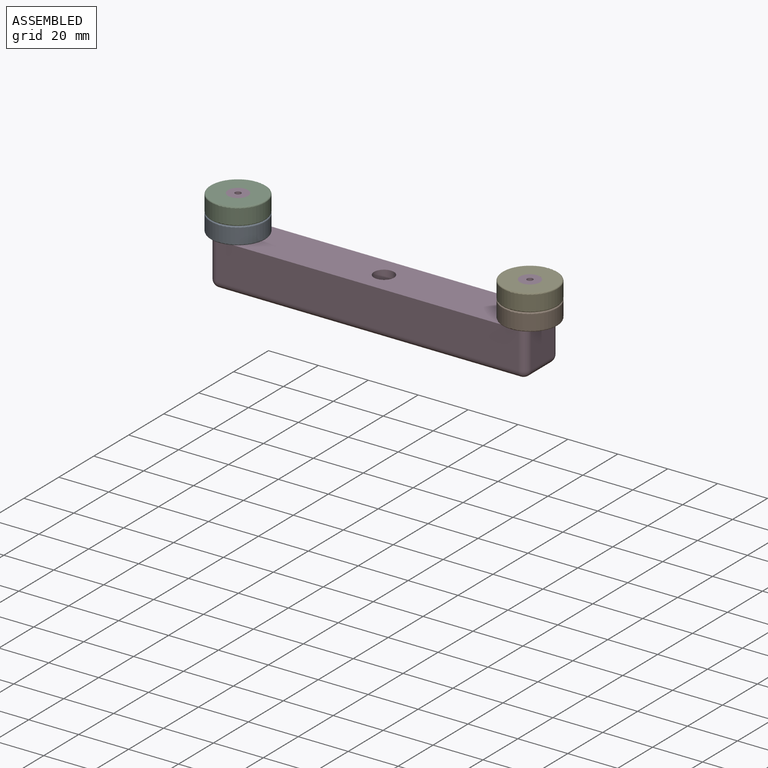
[diagram: assembled view]
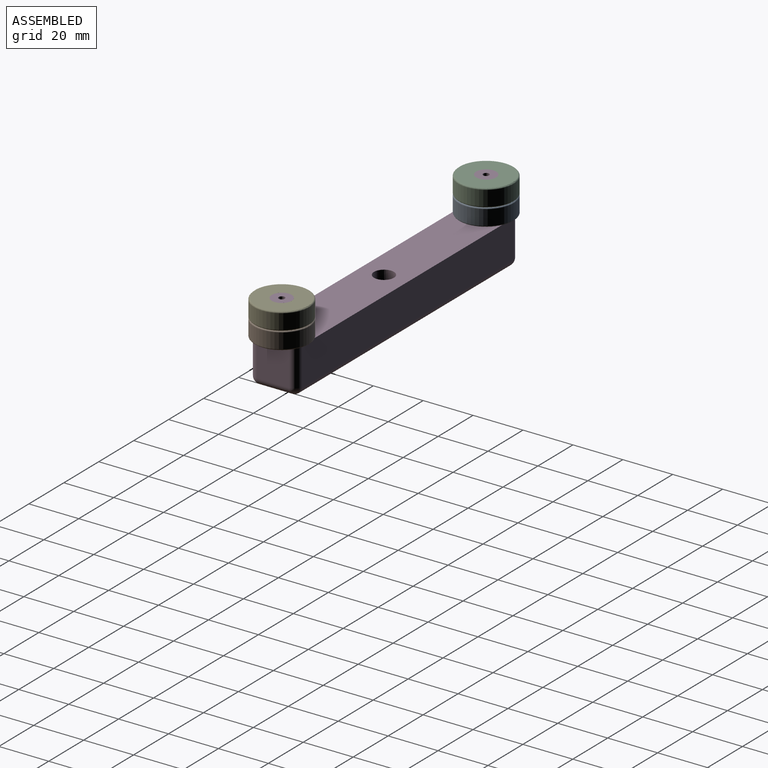
[diagram: assembled view, second angle]
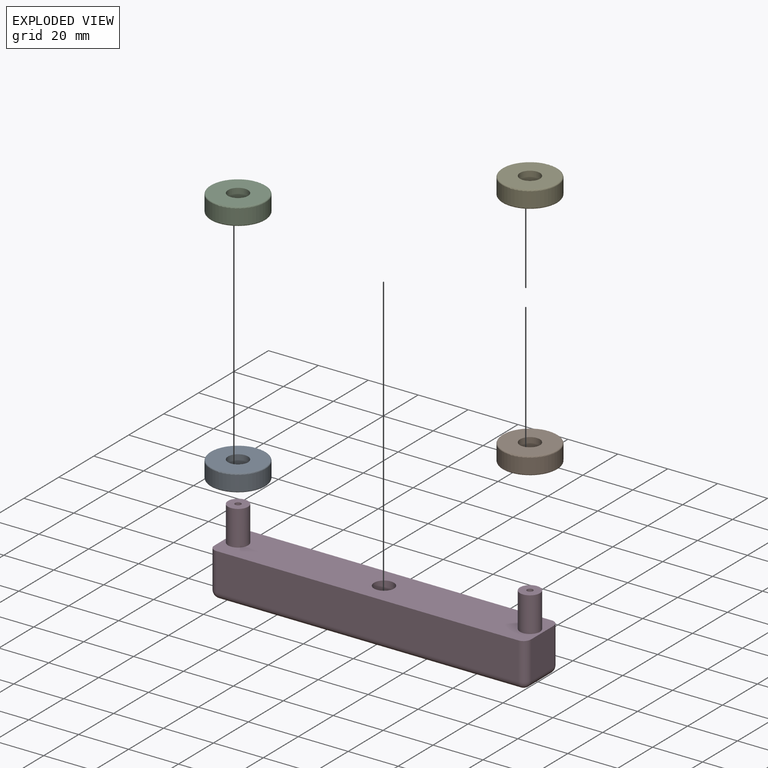
[diagram: exploded view]
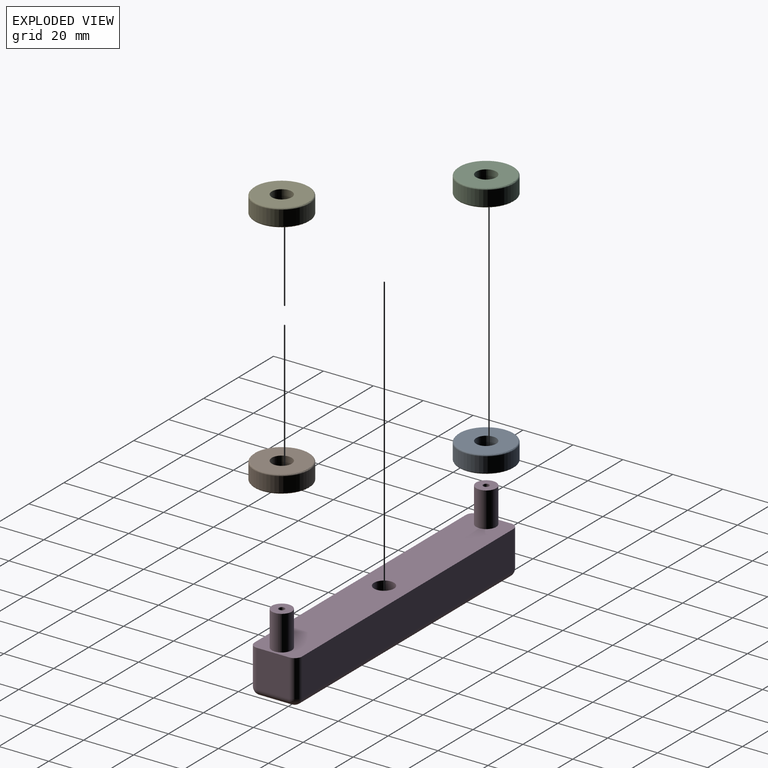
[diagram: exploded view, second angle]
ASSEMBLY  parts=5 mates=4
PART A: 6 faces, bbox 23.8x23.8x7 mm
  f0: cylinder r=4mm len=8mm, axis (0,0,-1), area 175.9mm2, adj f2,f3
  f1: cylinder r=11mm len=22mm, axis (0,0,-1), area 414.7mm2, adj f4,f5
  f2: plane 21x21mm, normal (0,0,1), area 296.1mm2, adj f0,f5
  f3: plane 21x21mm, normal (0,0,-1), area 296.1mm2, adj f0,f4
  f4: torus R=10.5mm, axis (0,0,1), area 53.4mm2, adj f1,f3
  f5: torus R=10.5mm, axis (0,0,1), area 53.4mm2, adj f1,f2
PART B: same geometry as A
PART C: same geometry as A
PART D: 27 faces, bbox 127x19.1x32 mm
  f0: plane 15x13.05mm, normal (-1,0,0), area 195.7mm2, adj f5,f20,f24,f26
  f1: plane 121x15mm, normal (0,-1,0), area 1815mm2, adj f5,f17,f23,f26
  f2: plane 15x13.05mm, normal (1,0,0), area 195.7mm2, adj f5,f15,f17,f18
  f3: cylinder r=4mm len=18mm, axis (0,0,-1), area 452.4mm2, adj f5,f6
  f4: plane 121x15mm, normal (0,1,0), area 1815mm2, adj f5,f15,f19,f20
  f5: plane 127x19.05mm, normal (0,0,1), area 2260.8mm2, adj f0,f1,f2,f3,f4,f7,f9,f15
  f6: plane 121x13.05mm, normal (0,0,-1), area 1528.8mm2, adj f3,f18,f19,f23,f24
  f7: cylinder r=4mm len=14mm, axis (0,0,-1), area 351.9mm2, adj f5,f8
  f8: plane 8x8mm, normal (0,0,1), area 45.7mm2, adj f7,f11
  f9: cylinder r=4mm len=14mm, axis (0,0,-1), area 351.9mm2, adj f5,f10
  f10: plane 8x8mm, normal (0,0,1), area 45.7mm2, adj f9,f13
  f11: cylinder r=1.2mm len=10mm, axis (0,0,1), area 75.4mm2, adj f8,f12
  f12: cone r=0mm half-angle=59deg, axis (0,0,1), area 5.3mm2, adj f11
  f13: cylinder r=1.2mm len=10mm, axis (0,0,1), area 75.4mm2, adj f10,f14
  f14: cone r=0mm half-angle=59deg, axis (0,0,1), area 5.3mm2, adj f13
  f15: cylinder r=3mm len=15mm, axis (0,0,-1), area 70.7mm2, adj f2,f4,f5,f16
  f16: sphere r=3mm, area 14.1mm2, adj f15,f18,f19
  f17: cylinder r=3mm len=15mm, axis (0,0,1), area 70.7mm2, adj f1,f2,f5,f21
  f18: cylinder r=3mm len=13.05mm, axis (0,1,0), area 61.5mm2, adj f2,f6,f16,f21
  f19: cylinder r=3mm len=121mm, axis (-1,0,0), area 570.2mm2, adj f4,f6,f16,f22
  f20: cylinder r=3mm len=15mm, axis (0,0,1), area 70.7mm2, adj f0,f4,f5,f22
  f21: sphere r=3mm, area 14.1mm2, adj f17,f18,f23
  f22: sphere r=3mm, area 14.1mm2, adj f19,f20,f24
  f23: cylinder r=3mm len=121mm, axis (1,0,0), area 570.2mm2, adj f1,f6,f21,f25
  f24: cylinder r=3mm len=13.05mm, axis (0,-1,0), area 61.5mm2, adj f0,f6,f22,f25
  f25: sphere r=3mm, area 14.1mm2, adj f23,f24,f26
  f26: cylinder r=3mm len=15mm, axis (0,0,-1), area 70.7mm2, adj f0,f1,f5,f25
PART E: same geometry as A
PLACE A t=(-2.89,6.3,7.84)mm
PLACE B t=(114.11,6.3,7.84)mm
PLACE C t=(-2.89,6.3,14.84)mm
PLACE D t=(-2.89,6.3,-10.16)mm
PLACE E t=(114.11,6.3,14.84)mm
MATE revolute C.f0 <-> D.f7  axis (0,0,1) through (2.11,-3.22,21.84)mm
MATE revolute E.f0 <-> D.f9  axis (0,0,1) through (119.11,-3.22,21.84)mm
MATE fastened C.f0 <-> A.f0  axis (0,0,-1) through (2.11,-3.22,14.84)mm
MATE fastened B.f0 <-> E.f0  axis (0,0,1) through (119.11,-3.22,14.84)mm
